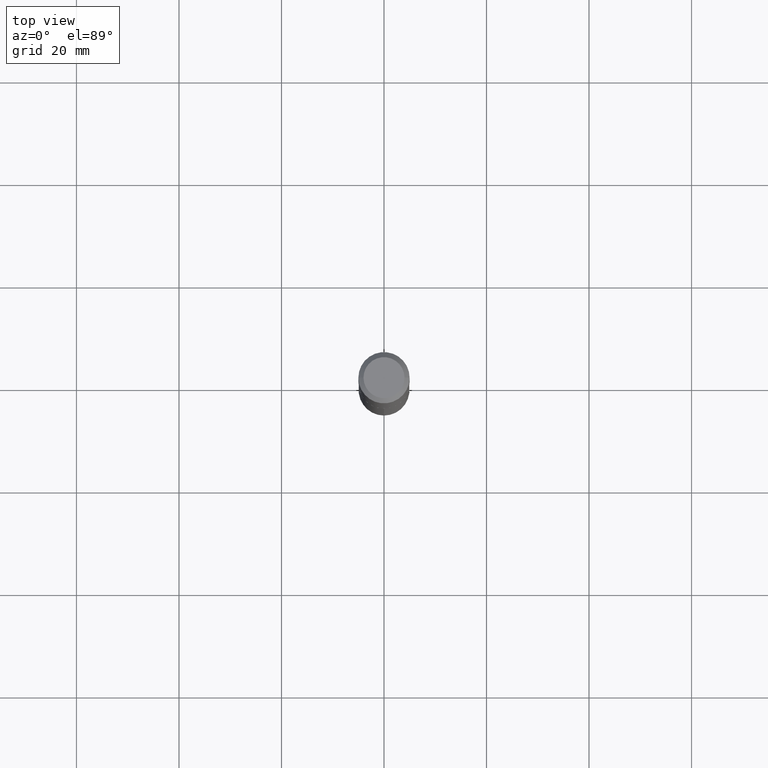
[diagram: clean part render]
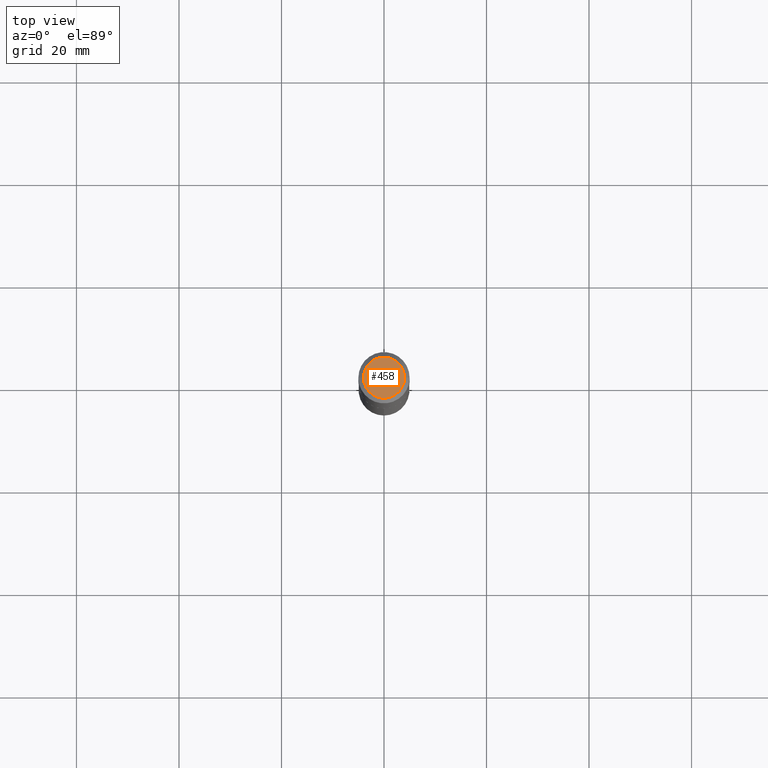
[diagram: same view with one face highlighted and labeled with its STEP entity id]
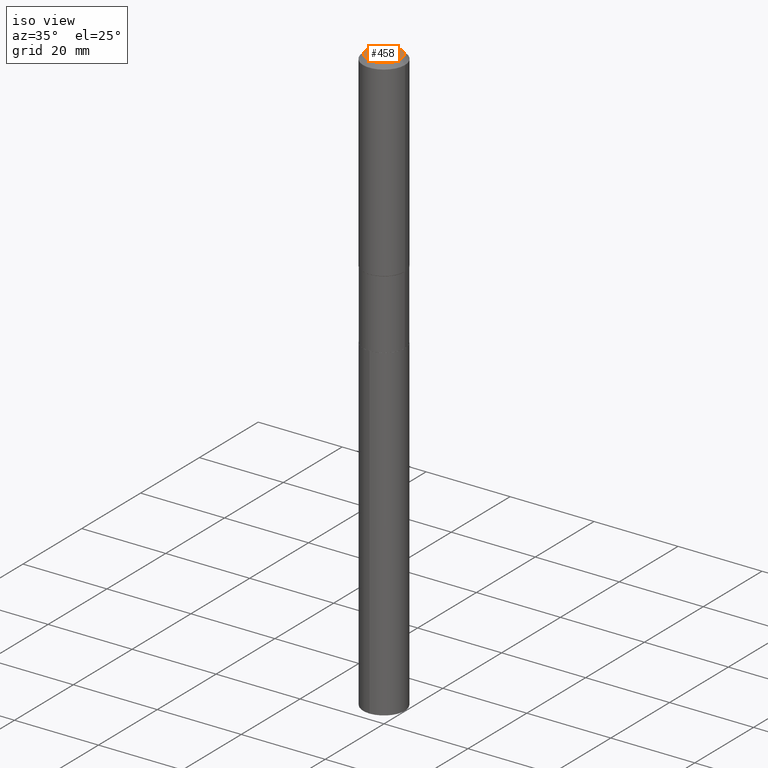
[diagram: same view with one face highlighted and labeled with its STEP entity id]
A machine part, top view. The second image highlights one B-rep face of the part: STEP entity #458.
A second angle (iso view) of the same face is appended — the face is thin or edge-on in the first view.
In plain terms, the highlighted planar face has unit normal (0, -0, -1).
Its self-contained STEP definition (entity closure, byte-faithful):
#30 = CARTESIAN_POINT ( 'NONE',  ( -9.427742298522567634E-47, 1.346031739168368355E-32, 3.855188123715870730E-18 ) ) ;
#40 = AXIS2_PLACEMENT_3D ( 'NONE', #448, #371, #108 ) ;
#42 = FACE_OUTER_BOUND ( 'NONE', #386, .T. ) ;
#58 = AXIS2_PLACEMENT_3D ( 'NONE', #304, #452, #111 ) ;
#72 = DIRECTION ( 'NONE',  ( -2.445468806185136597E-29, 3.491481338843145583E-15, 1.000000000000000000 ) ) ;
#108 = DIRECTION ( 'NONE',  ( 1.000000000000000000, -6.982962677686265922E-15, 4.876223630392693006E-29 ) ) ;
#111 = DIRECTION ( 'NONE',  ( -1.000000000000000000, 6.982962677686265922E-15, -4.876176775795935793E-29 ) ) ;
#125 = ORIENTED_EDGE ( 'NONE', *, *, #247, .T. ) ;
#155 = PLANE ( 'NONE',  #58 ) ;
#156 = ORIENTED_EDGE ( 'NONE', *, *, #191, .T. ) ;
#175 = CIRCLE ( 'NONE', #40, 0.1574800000000000089 ) ;
#191 = EDGE_CURVE ( 'NONE', #471, #248, #324, .T. ) ;
#221 = DIRECTION ( 'NONE',  ( 1.000000000000000000, -6.982962677686265922E-15, 4.876223630392693006E-29 ) ) ;
#247 = EDGE_CURVE ( 'NONE', #248, #471, #175, .T. ) ;
#248 = VERTEX_POINT ( 'NONE', #453 ) ;
#304 = CARTESIAN_POINT ( 'NONE',  ( -4.713871149261283817E-47, 6.730158695841841775E-33, 1.927594061857935365E-18 ) ) ;
#315 = CARTESIAN_POINT ( 'NONE',  ( 0.1574800000000000089, -1.284169937930321189E-15, 3.855188123724205385E-18 ) ) ;
#324 = CIRCLE ( 'NONE', #342, 0.1574800000000000089 ) ;
#342 = AXIS2_PLACEMENT_3D ( 'NONE', #30, #72, #221 ) ;
#371 = DIRECTION ( 'NONE',  ( -2.445468806185136597E-29, 3.491481338843145583E-15, 1.000000000000000000 ) ) ;
#386 = EDGE_LOOP ( 'NONE', ( #125, #156 ) ) ;
#448 = CARTESIAN_POINT ( 'NONE',  ( -9.427742298522567634E-47, 1.346031739168368355E-32, 3.855188123715870730E-18 ) ) ;
#452 = DIRECTION ( 'NONE',  ( 2.438088387897960049E-29, -3.491481338843145188E-15, -1.000000000000000000 ) ) ;
#453 = CARTESIAN_POINT ( 'NONE',  ( -0.1574800000000000089, 1.168406772637159618E-15, 3.855188123707939751E-18 ) ) ;
#458 = ADVANCED_FACE ( 'NONE', ( #42 ), #155, .F. ) ;
#471 = VERTEX_POINT ( 'NONE', #315 ) ;